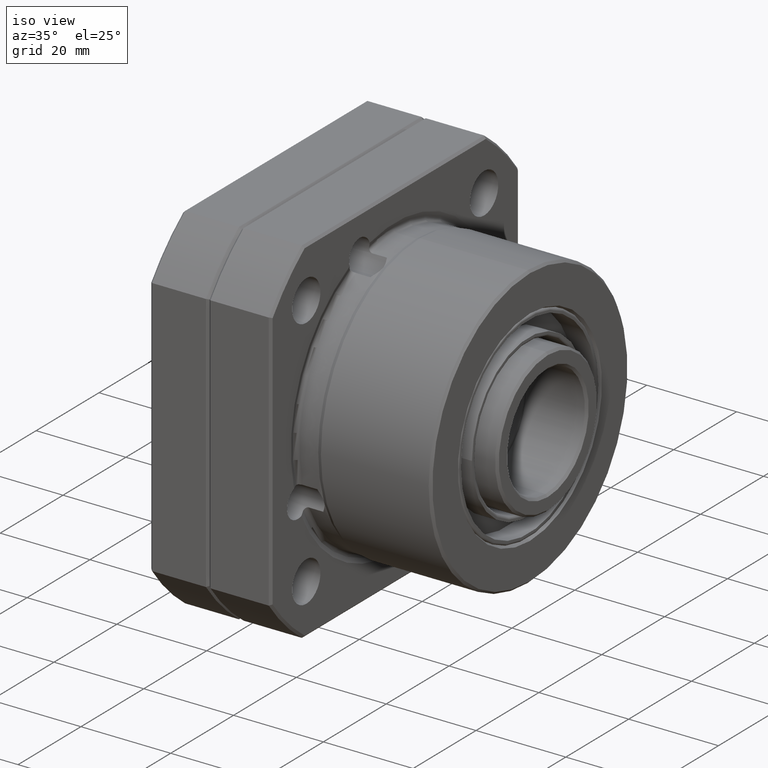
[diagram: clean part render]
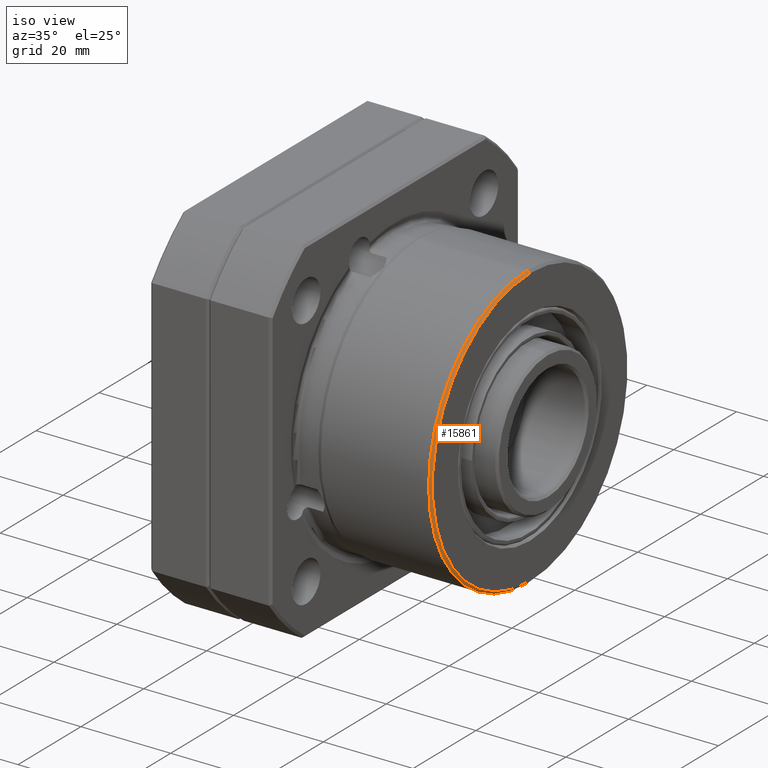
[diagram: same view with one face highlighted and labeled with its STEP entity id]
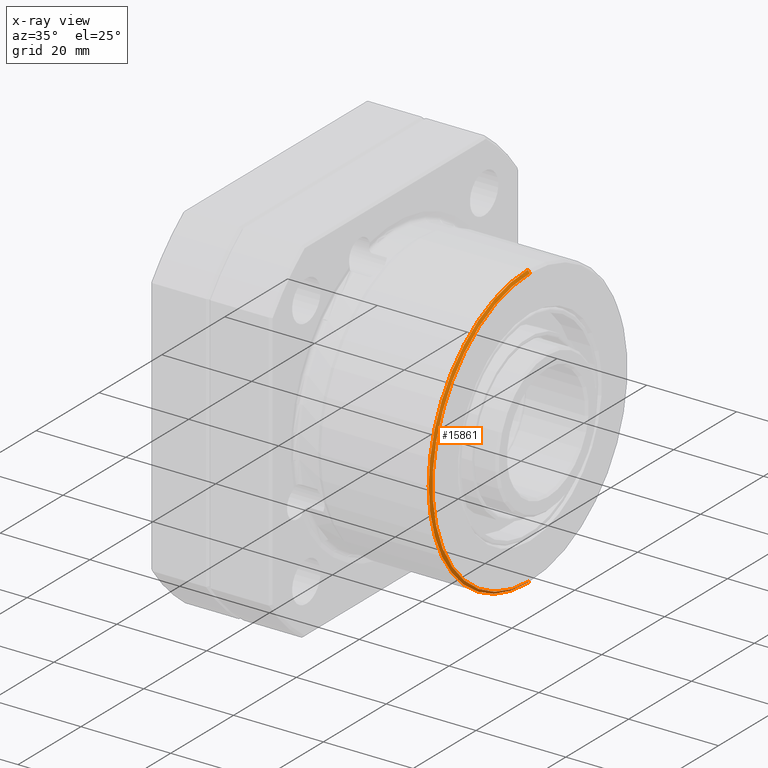
[diagram: x-ray of the same camera — body ghosted, the highlighted face saturated]
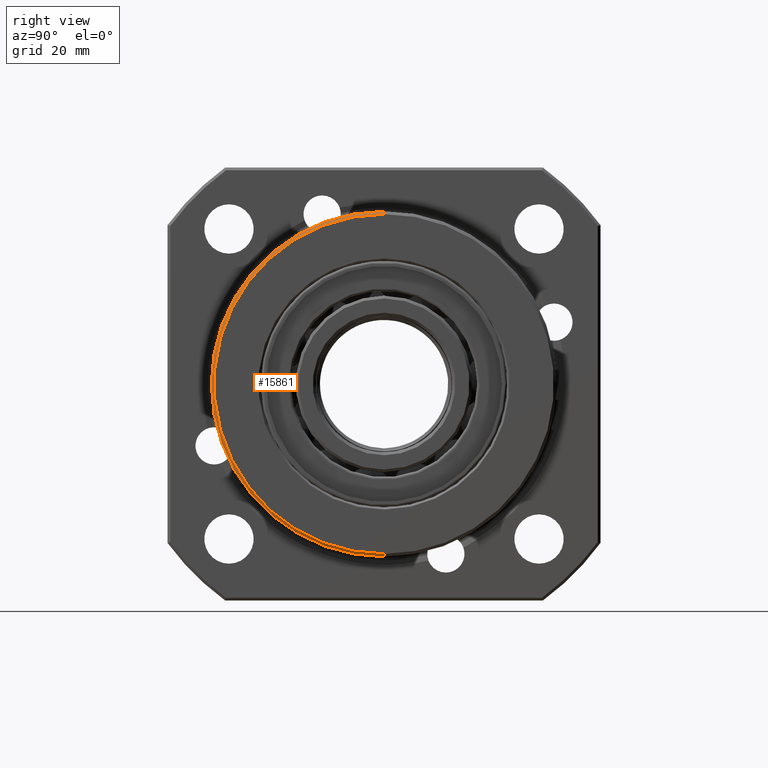
[diagram: same view with one face highlighted and labeled with its STEP entity id]
A machine part, iso view. The second image highlights one B-rep face of the part: STEP entity #15861.
The next image is the same camera in x-ray: the body ghosted, the highlighted face saturated — about 0% of this face is hidden behind the body in this view.
A second angle (right view) of the same face is appended — the face is thin or edge-on in the first view.
In plain terms, the highlighted conical surface has half-angle 45 deg.
Its self-contained STEP definition (entity closure, byte-faithful):
#10058 = CARTESIAN_POINT ( 'NONE',  ( 44.00000000000000000, 0.0000000000000000000, 31.00000000000002100 ) ) ;
#10063 = CARTESIAN_POINT ( 'NONE',  ( 44.00000000000000000, 3.826894855694930500E-015, -31.00000000000002100 ) ) ;
#10109 = CARTESIAN_POINT ( 'NONE',  ( 43.50000000000000000, 3.857510014540488400E-015, -31.50000000000000000 ) ) ;
#10110 = DIRECTION ( 'NONE',  ( -0.7071067811865622300, 8.659274570719175500E-017, -0.7071067811865328100 ) ) ;
#10111 = VECTOR ( 'NONE', #10110, 1000.000000000000000 ) ;
#10112 = CARTESIAN_POINT ( 'NONE',  ( 43.50000000000000000, 3.857510014540488400E-015, -31.50000000000000000 ) ) ;
#10113 = LINE ( 'NONE', #10112, #10111 ) ;
#10842 = DIRECTION ( 'NONE',  ( -0.7071067811865622300, 0.0000000000000000000, 0.7071067811865328100 ) ) ;
#10843 = VECTOR ( 'NONE', #10842, 1000.000000000000000 ) ;
#10844 = CARTESIAN_POINT ( 'NONE',  ( 43.50000000000000000, 0.0000000000000000000, 31.50000000000000000 ) ) ;
#10845 = LINE ( 'NONE', #10844, #10843 ) ;
#10846 = CARTESIAN_POINT ( 'NONE',  ( 43.50000000000000000, 0.0000000000000000000, 31.50000000000000000 ) ) ;
#11482 = DIRECTION ( 'NONE',  ( 0.0000000000000000000, 0.0000000000000000000, 1.000000000000000000 ) ) ;
#11483 = DIRECTION ( 'NONE',  ( 1.000000000000000000, 0.0000000000000000000, 0.0000000000000000000 ) ) ;
#11484 = CARTESIAN_POINT ( 'NONE',  ( 44.00000000000000000, 0.0000000000000000000, 0.0000000000000000000 ) ) ;
#11485 = AXIS2_PLACEMENT_3D ( 'NONE', #11484, #11483, #11482 ) ;
#11486 = CIRCLE ( 'NONE', #11485, 31.00000000000002100 ) ;
#11604 = DIRECTION ( 'NONE',  ( 0.0000000000000000000, 0.0000000000000000000, 1.000000000000000000 ) ) ;
#11605 = DIRECTION ( 'NONE',  ( -1.000000000000000000, -0.0000000000000000000, -0.0000000000000000000 ) ) ;
#11606 = CARTESIAN_POINT ( 'NONE',  ( 43.50000000000000000, 0.0000000000000000000, 0.0000000000000000000 ) ) ;
#11607 = AXIS2_PLACEMENT_3D ( 'NONE', #11606, #11605, #11604 ) ;
#11608 = CIRCLE ( 'NONE', #11607, 31.50000000000000000 ) ;
#11940 = DIRECTION ( 'NONE',  ( 0.0000000000000000000, 0.0000000000000000000, 1.000000000000000000 ) ) ;
#11941 = DIRECTION ( 'NONE',  ( -1.000000000000000000, -0.0000000000000000000, -0.0000000000000000000 ) ) ;
#11942 = CARTESIAN_POINT ( 'NONE',  ( 43.50000000000000000, 0.0000000000000000000, 0.0000000000000000000 ) ) ;
#11943 = AXIS2_PLACEMENT_3D ( 'NONE', #11942, #11941, #11940 ) ;
#11945 = CONICAL_SURFACE ( 'NONE', #11943, 31.50000000000000000, 0.7853981633974275200 ) ;
#11950 = FACE_OUTER_BOUND ( 'NONE', #15862, .T. ) ;
#15129 = VERTEX_POINT ( 'NONE', #10063 ) ;
#15130 = VERTEX_POINT ( 'NONE', #10058 ) ;
#15132 = EDGE_CURVE ( 'NONE', #15129, #15133, #10113, .T. ) ;
#15133 = VERTEX_POINT ( 'NONE', #10109 ) ;
#15215 = VERTEX_POINT ( 'NONE', #10846 ) ;
#15217 = EDGE_CURVE ( 'NONE', #15130, #15215, #10845, .T. ) ;
#15544 = EDGE_CURVE ( 'NONE', #15130, #15129, #11486, .T. ) ;
#15603 = EDGE_CURVE ( 'NONE', #15133, #15215, #11608, .T. ) ;
#15861 = ADVANCED_FACE ( 'NONE', ( #11950 ), #11945, .T. ) ;
#15862 = EDGE_LOOP ( 'NONE', ( #15863, #15864, #15865, #15866 ) ) ;
#15863 = ORIENTED_EDGE ( 'NONE', *, *, #15132, .F. ) ;
#15864 = ORIENTED_EDGE ( 'NONE', *, *, #15544, .F. ) ;
#15865 = ORIENTED_EDGE ( 'NONE', *, *, #15217, .T. ) ;
#15866 = ORIENTED_EDGE ( 'NONE', *, *, #15603, .F. ) ;